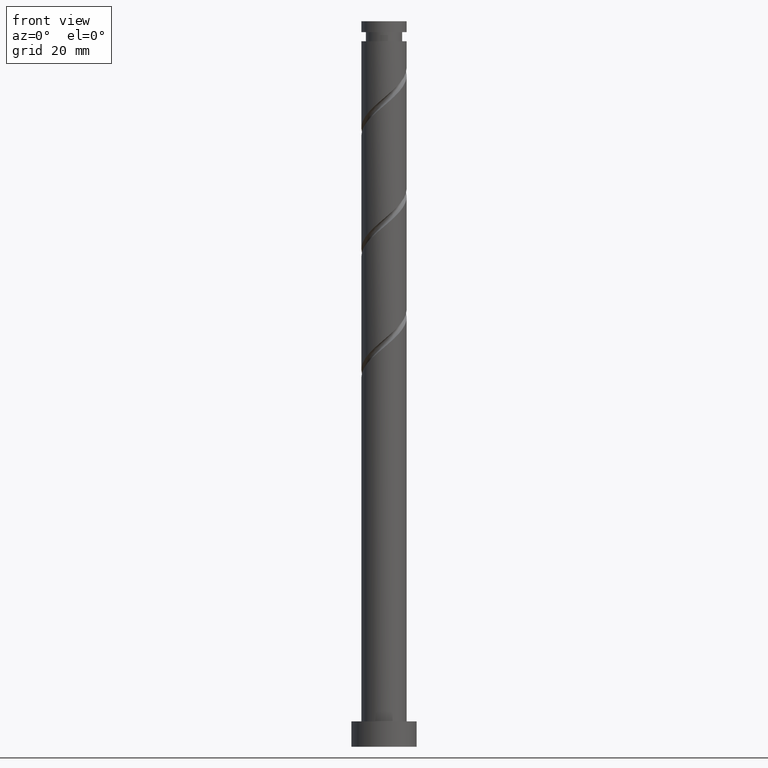
[diagram: clean part render]
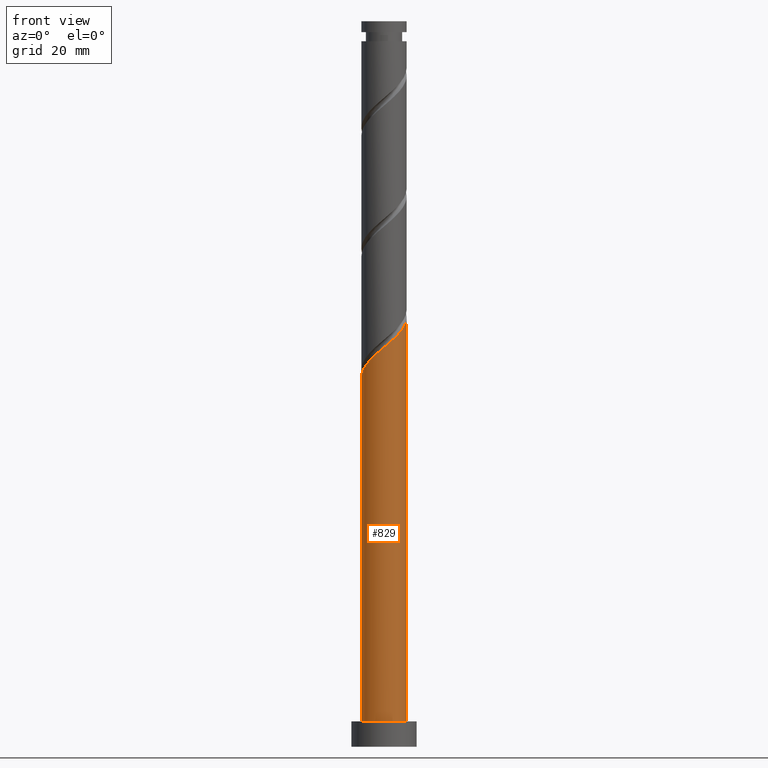
[diagram: same view with one face highlighted and labeled with its STEP entity id]
A machine part, front view. The second image highlights one B-rep face of the part: STEP entity #829.
In plain terms, the highlighted cylindrical surface (edge-blend (fillet) strip) has radius 6.25 mm, axis along (-0, -0, -1).
Its self-contained STEP definition (entity closure, byte-faithful):
#94 = CARTESIAN_POINT ( 'NONE',  ( 0.000000000000000000, 0.000000000000000000, 200.0000000000000000 ) ) ;
#101 = CARTESIAN_POINT ( 'NONE',  ( -6.250000000000008882, -0.6281486345370154156, 102.2816183233025384 ) ) ;
#111 = CARTESIAN_POINT ( 'NONE',  ( -1.985394503774124075, -5.926272746371334499, 108.3673141648789198 ) ) ;
#122 = DIRECTION ( 'NONE',  ( -0.000000000000000000, -0.000000000000000000, -1.000000000000000000 ) ) ;
#150 = CARTESIAN_POINT ( 'NONE',  ( -6.250000000000000000, 0.000000000000000000, 7.000000000000000000 ) ) ;
#187 = DIRECTION ( 'NONE',  ( -0.000000000000000000, -0.000000000000000000, -1.000000000000000000 ) ) ;
#223 = CARTESIAN_POINT ( 'NONE',  ( -5.594393563069377961, -2.786621729171013584, 104.2006474982122768 ) ) ;
#381 = CARTESIAN_POINT ( 'NONE',  ( 6.250000000000009770, 8.972270666172067868E-16, 118.4148586207799667 ) ) ;
#392 = VERTEX_POINT ( 'NONE', #381 ) ;
#418 = CARTESIAN_POINT ( 'NONE',  ( -6.250000000000000000, 0.000000000000000000, 200.0000000000000000 ) ) ;
#422 = EDGE_LOOP ( 'NONE', ( #1325, #1123, #727, #899 ) ) ;
#488 = VECTOR ( 'NONE', #817, 1000.000000000000000 ) ;
#508 = CARTESIAN_POINT ( 'NONE',  ( -6.250000000000009770, -4.845026159732916609E-15, 101.7481919541133095 ) ) ;
#515 = VERTEX_POINT ( 'NONE', #1604 ) ;
#520 = CARTESIAN_POINT ( 'NONE',  ( -4.682538449988056684, -4.139605496225887471, 105.5895363871011199 ) ) ;
#649 = CARTESIAN_POINT ( 'NONE',  ( -6.125000000000009770, -1.243734296383278259, 102.8117586093233484 ) ) ;
#657 = CARTESIAN_POINT ( 'NONE',  ( 1.243734296383277815, -6.125000000000009770, 111.1450919426567054 ) ) ;
#727 = ORIENTED_EDGE ( 'NONE', *, *, #1009, .T. ) ;
#755 = CARTESIAN_POINT ( 'NONE',  ( 0.000000000000000000, 0.000000000000000000, 7.000000000000000000 ) ) ;
#772 = CARTESIAN_POINT ( 'NONE',  ( 3.523137614235944515, -5.227527852592706914, 113.2284252759900056 ) ) ;
#780 = CARTESIAN_POINT ( 'NONE',  ( 2.050105844106077768, -5.961259273546051674, 111.8395363871011483 ) ) ;
#786 = EDGE_CURVE ( 'NONE', #1308, #392, #1658, .T. ) ;
#808 = AXIS2_PLACEMENT_3D ( 'NONE', #755, #1662, #1514 ) ;
#817 = DIRECTION ( 'NONE',  ( -0.000000000000000000, -0.000000000000000000, -1.000000000000000000 ) ) ;
#829 = ADVANCED_FACE ( 'NONE', ( #1184 ), #1723, .T. ) ;
#899 = ORIENTED_EDGE ( 'NONE', *, *, #1111, .T. ) ;
#912 = CARTESIAN_POINT ( 'NONE',  ( -5.961259273546051674, -2.050105844106077768, 103.5062030537677913 ) ) ;
#924 = CARTESIAN_POINT ( 'NONE',  ( -0.3839115733348728021, -6.238197808971729152, 109.7562030537678197 ) ) ;
#934 = CARTESIAN_POINT ( 'NONE',  ( -5.227527852592706026, -3.523137614235945847, 104.8950919426566912 ) ) ;
#979 = LINE ( 'NONE', #418, #488 ) ;
#993 = VERTEX_POINT ( 'NONE', #150 ) ;
#1009 = EDGE_CURVE ( 'NONE', #1308, #993, #979, .T. ) ;
#1039 = CARTESIAN_POINT ( 'NONE',  ( 6.238197808971729152, -0.3839115733348761328, 118.0895363871011341 ) ) ;
#1045 = CARTESIAN_POINT ( 'NONE',  ( -6.250000000000009770, -4.845026159732916609E-15, 101.7481919541133095 ) ) ;
#1054 = CARTESIAN_POINT ( 'NONE',  ( 5.926272746371334499, -1.985394503774124075, 116.7006474982122484 ) ) ;
#1064 = CARTESIAN_POINT ( 'NONE',  ( -2.765603112218025128, -5.664890601253182112, 107.6728697204344769 ) ) ;
#1072 = DIRECTION ( 'NONE',  ( -1.000000000000000000, 0.000000000000000000, 0.000000000000000000 ) ) ;
#1090 = VECTOR ( 'NONE', #187, 1000.000000000000000 ) ;
#1111 = EDGE_CURVE ( 'NONE', #993, #515, #1361, .T. ) ;
#1123 = ORIENTED_EDGE ( 'NONE', *, *, #786, .F. ) ;
#1142 = CARTESIAN_POINT ( 'NONE',  ( 6.250000000000000000, 7.654042494670957606E-16, 200.0000000000000000 ) ) ;
#1162 = EDGE_CURVE ( 'NONE', #392, #515, #1525, .T. ) ;
#1184 = FACE_OUTER_BOUND ( 'NONE', #422, .T. ) ;
#1193 = CARTESIAN_POINT ( 'NONE',  ( 5.664890601253181224, -2.765603112218025128, 116.0062030537677913 ) ) ;
#1202 = CARTESIAN_POINT ( 'NONE',  ( -4.137549047383409118, -4.756073378215827319, 106.2839808315455770 ) ) ;
#1252 = AXIS2_PLACEMENT_3D ( 'NONE', #94, #122, #1072 ) ;
#1295 = CARTESIAN_POINT ( 'NONE',  ( 6.187654891489485109, -1.205185895330223245, 117.3950919426566770 ) ) ;
#1302 = CARTESIAN_POINT ( 'NONE',  ( 6.250000000000011546, -0.1921371978604410891, 118.2516949327518319 ) ) ;
#1308 = VERTEX_POINT ( 'NONE', #508 ) ;
#1312 = CARTESIAN_POINT ( 'NONE',  ( 6.250000000000009770, 8.972270666172067868E-16, 118.4148586207799667 ) ) ;
#1321 = CARTESIAN_POINT ( 'NONE',  ( 0.4373627486604749759, -6.288740726453970531, 110.4506474982122626 ) ) ;
#1325 = ORIENTED_EDGE ( 'NONE', *, *, #1162, .F. ) ;
#1326 = CARTESIAN_POINT ( 'NONE',  ( 2.786621729171010919, -5.594393563069378850, 112.5339808315455912 ) ) ;
#1361 = CIRCLE ( 'NONE', #808, 6.250000000000000000 ) ;
#1438 = CARTESIAN_POINT ( 'NONE',  ( 4.139605496225885695, -4.682538449988056684, 113.9228697204344911 ) ) ;
#1449 = CARTESIAN_POINT ( 'NONE',  ( -1.205185895330220580, -6.187654891489485998, 109.0617586093233768 ) ) ;
#1514 = DIRECTION ( 'NONE',  ( 1.000000000000000000, 0.000000000000000000, 0.000000000000000000 ) ) ;
#1525 = LINE ( 'NONE', #1142, #1090 ) ;
#1574 = CARTESIAN_POINT ( 'NONE',  ( 4.756073378215827319, -4.137549047383409118, 114.6173141648789056 ) ) ;
#1603 = CARTESIAN_POINT ( 'NONE',  ( -3.451576079800716013, -5.210481989734506492, 106.9784252759900198 ) ) ;
#1604 = CARTESIAN_POINT ( 'NONE',  ( 6.250000000000000000, 7.654042494670957606E-16, 7.000000000000000000 ) ) ;
#1658 =( BOUNDED_CURVE ( )  B_SPLINE_CURVE ( 2, ( #1045, #101, #649, #912, #223, #934, #520, #1202, #1603, #1064, #111, #1449, #924, #1321, #657, #780, #1326, #772, #1438, #1574, #1740, #1193, #1054, #1295, #1039, #1302, #1312 ),
 .UNSPECIFIED., .F., .T. ) 
 B_SPLINE_CURVE_WITH_KNOTS ( ( 3, 2, 2, 2, 2, 2, 2, 2, 2, 2, 2, 2, 2, 3 ),
 ( 0.05453176698144639872, 0.06250000000000000000, 0.07291666666666662966, 0.08333333333333337034, 0.09375000000000000000, 0.1041666666666666297, 0.1145833333333333703, 0.1250000000000000000, 0.1354166666666666297, 0.1458333333333333703, 0.1562500000000000000, 0.1666666666666666297, 0.1770833333333333703, 0.1795317669814466000 ),
 .UNSPECIFIED. ) 
 CURVE ( )  GEOMETRIC_REPRESENTATION_ITEM ( )  RATIONAL_B_SPLINE_CURVE ( ( 0.9062941362546428348, 0.9031415850403472501, 0.9090909090909224943, 0.9013135103398410841, 0.9090909090909224943, 0.9013135103398410841, 0.9090909090909224943, 0.9013135103398410841, 0.9090909090909224943, 0.9013135103398410841, 0.9090909090909224943, 0.9013135103398410841, 0.9090909090909224943, 0.9013135103398410841, 0.9090909090909224943, 0.9013135103398410841, 0.9090909090909224943, 0.9013135103398410841, 0.9090909090909224943, 0.9013135103398410841, 0.9090909090909224943, 0.9013135103398410841, 0.9090909090909224943, 0.9013135103398410841, 0.9090909090909224943, 0.9072628343904161063, 0.9062941362546426127 ) ) 
 REPRESENTATION_ITEM ( '' )  );
#1662 = DIRECTION ( 'NONE',  ( 0.000000000000000000, 0.000000000000000000, 1.000000000000000000 ) ) ;
#1723 = CYLINDRICAL_SURFACE ( 'NONE', #1252, 6.250000000000000000 ) ;
#1740 = CARTESIAN_POINT ( 'NONE',  ( 5.210481989734505603, -3.451576079800717789, 115.3117586093233768 ) ) ;